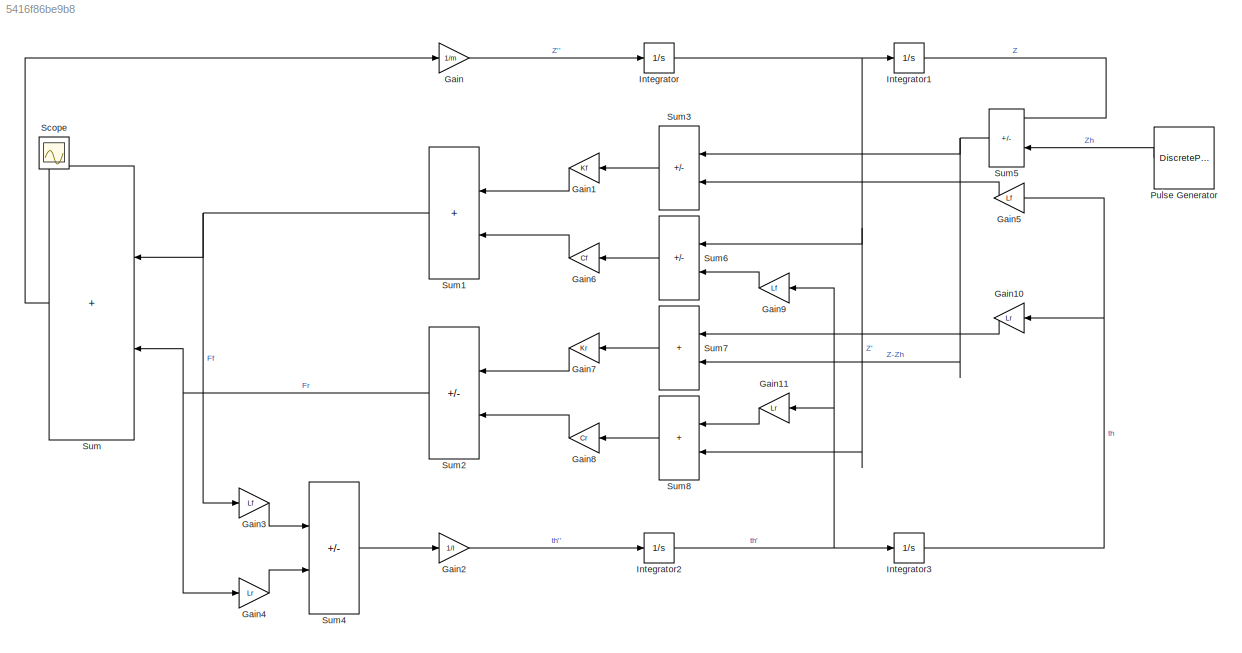
MODEL slx_5416f86be9b8
KIND model
CONFIG AbsTol = auto
CONFIG EnableMultiTasking = off
CONFIG FixedStep = auto
CONFIG MaxStep = auto
CONFIG MinStep = auto
CONFIG PreLoadFcn = Lf = 0.9;    % front hub displacement from body gravity center (m)\nLr = 1.2;    % rear hub displacement from body gravity center (m)\nm = 1200;   % body mass (kg)\nI = 2100;  % body moment of inertia about y-axis in (kg m^2)\nKf = 28000;  % front suspension stiffness in (N/m)\nKr = 21000;  % rear suspension stiffness in (N/m)\nCf = 2500;   % front suspension damping in (N sec/m)\nCr = 2000;   % rear sus...<+28ch>
CONFIG RelTol = 1e-3
CONFIG SampleTimeConstraint = Unconstrained
CONFIG SolverName = VariableStepAuto
CONFIG StartTime = 0.0
CONFIG StopTime = 10.0
BLOCK [Gain] Gain
  Gain = 1/m
BLOCK [Gain] Gain1
  Gain = Kf
  NameLocation = top
BLOCK [Gain] Gain10
  Gain = Lr
  NameLocation = top
BLOCK [Gain] Gain11
  Gain = Lr
  NameLocation = top
BLOCK [Gain] Gain2
  Gain = 1/I
BLOCK [Gain] Gain3
  Gain = Lf
BLOCK [Gain] Gain4
  Gain = Lr
BLOCK [Gain] Gain5
  Gain = Lf
  NameLocation = top
BLOCK [Gain] Gain6
  Gain = Cf
  NameLocation = top
BLOCK [Gain] Gain7
  Gain = Kr
  NameLocation = top
BLOCK [Gain] Gain8
  Gain = Cr
  NameLocation = top
BLOCK [Gain] Gain9
  Gain = Lf
  NameLocation = top
BLOCK [Integrator] Integrator
  Ports = [1, 1]
BLOCK [Integrator] Integrator1
  Ports = [1, 1]
BLOCK [Integrator] Integrator2
  Ports = [1, 1]
BLOCK [Integrator] Integrator3
  Ports = [1, 1]
BLOCK [DiscretePulseGenerator] Pulse Generator
  NameLocation = top
  Period = 10
  PhaseDelay = 2
  Ports = [0, 1]
  PulseType = Time based
  PulseWidth = 10
BLOCK [Scope] Scope
  Floating = off
  IOType = viewer
  NumInputPorts = 1
  Ports = []
  ScopeSpecificationString = Simulink.scopes.TimeScopeBlockCfg('CurrentConfiguration', extmgr.ConfigurationSet(extmgr.Configuration('Core','General UI',true),extmgr.Configuration('Core','Source UI',true),extmgr.Configuration('Sources','WiredSimulink',true),extmgr.Configuration('Visuals','Time Domain',true,'SerializedDisplays',{struct('MinYLimReal','-0.53728','MaxYLimReal','1.59339','YLabelReal','','MinYLimMag','0.00000','MaxY...<+2004ch>
BLOCK [Sum] Sum
  IconShape = rectangular
  Inputs = +|+
  NameLocation = top
  Ports = [2, 1]
BLOCK [Sum] Sum1
  IconShape = rectangular
  Inputs = +|+
  NameLocation = top
  Ports = [2, 1]
BLOCK [Sum] Sum2
  IconShape = rectangular
  Inputs = -|-
  NameLocation = top
  Ports = [2, 1]
BLOCK [Sum] Sum3
  IconShape = rectangular
  Inputs = -|+
  NameLocation = top
  Ports = [2, 1]
BLOCK [Sum] Sum4
  IconShape = rectangular
  Inputs = -|+
  Ports = [2, 1]
BLOCK [Sum] Sum5
  IconShape = rectangular
  Inputs = +|-
  NameLocation = top
  Ports = [2, 1]
BLOCK [Sum] Sum6
  IconShape = rectangular
  Inputs = -|+
  NameLocation = top
  Ports = [2, 1]
BLOCK [Sum] Sum7
  IconShape = rectangular
  Inputs = +|+
  NameLocation = top
  Ports = [2, 1]
BLOCK [Sum] Sum8
  IconShape = rectangular
  Inputs = +|+
  NameLocation = top
  Ports = [2, 1]
LINE Gain10:1 -> Sum7:1
LINE Gain11:1 -> Sum8:1
LINE Gain1:1 -> Sum1:1
LINE Gain2:1 -> Integrator2:1
LINE Gain3:1 -> Sum4:1
LINE Gain4:1 -> Sum4:2
LINE Gain5:1 -> Sum3:2
LINE Gain6:1 -> Sum1:2
LINE Gain7:1 -> Sum2:1
LINE Gain8:1 -> Sum2:2
LINE Gain9:1 -> Sum6:2
LINE Gain:1 -> Integrator:1
LINE Integrator1:1 -> Sum5:1
NET Integrator2:1 -> Gain11:1, Gain9:1, Integrator3:1
NET Integrator3:1 -> Gain10:1, Gain5:1
NET Integrator:1 -> Integrator1:1, Sum6:1, Sum8:2
LINE Pulse Generator:1 -> Sum5:2
NET Sum1:1 -> Gain3:1, Sum:1
NET Sum2:1 -> Gain4:1, Sum:2
LINE Sum3:1 -> Gain1:1
LINE Sum4:1 -> Gain2:1
NET Sum5:1 -> Sum3:1, Sum7:2
LINE Sum6:1 -> Gain6:1
LINE Sum7:1 -> Gain7:1
LINE Sum8:1 -> Gain8:1
LINE Sum:1 -> Gain:1
note: NET lines group one-source signal fan-out (src -> all destinations, sorted); 1:1 wires keep LINE
